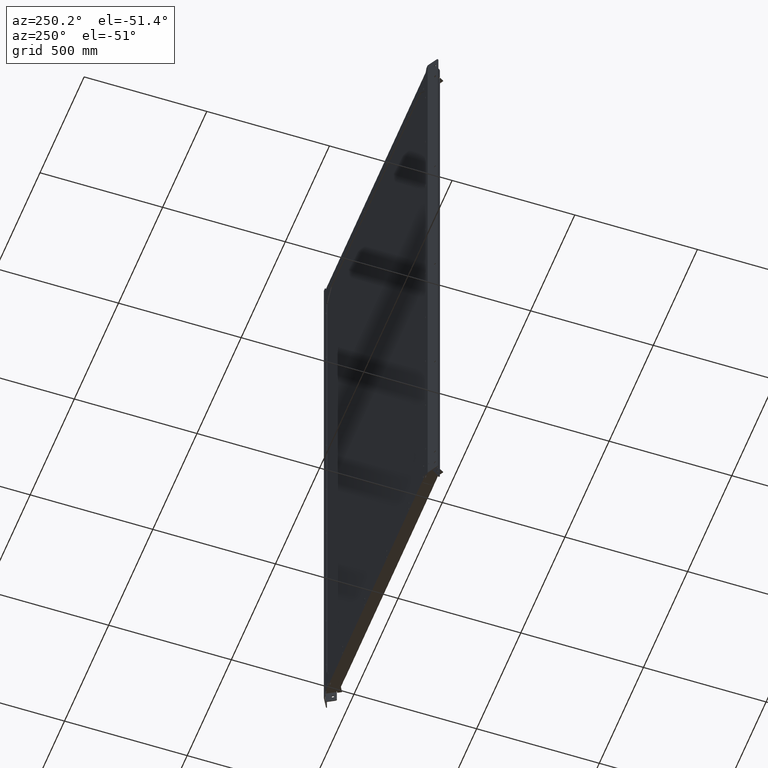
[diagram: clean part render]
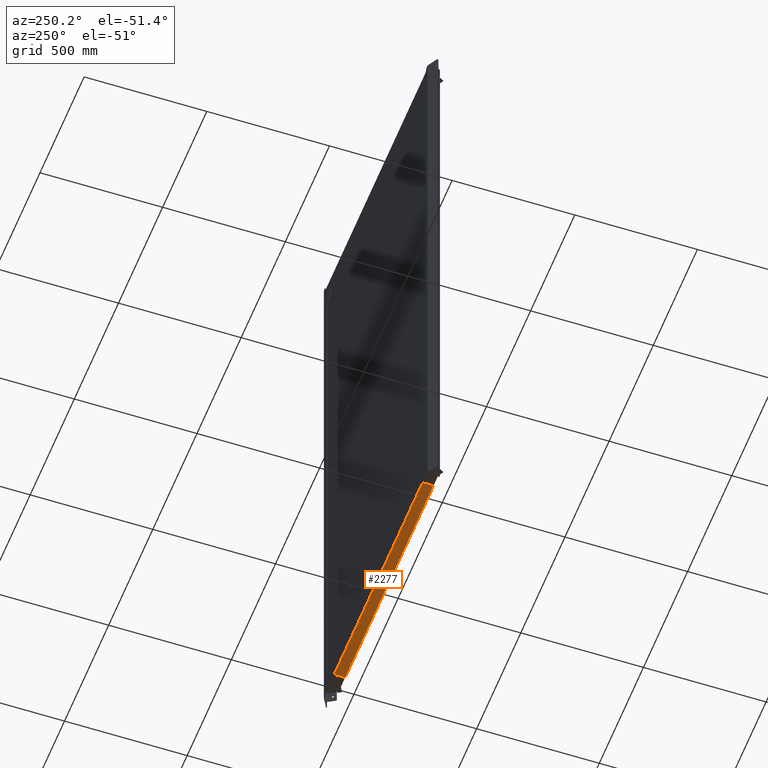
[diagram: same view with one face highlighted and labeled with its STEP entity id]
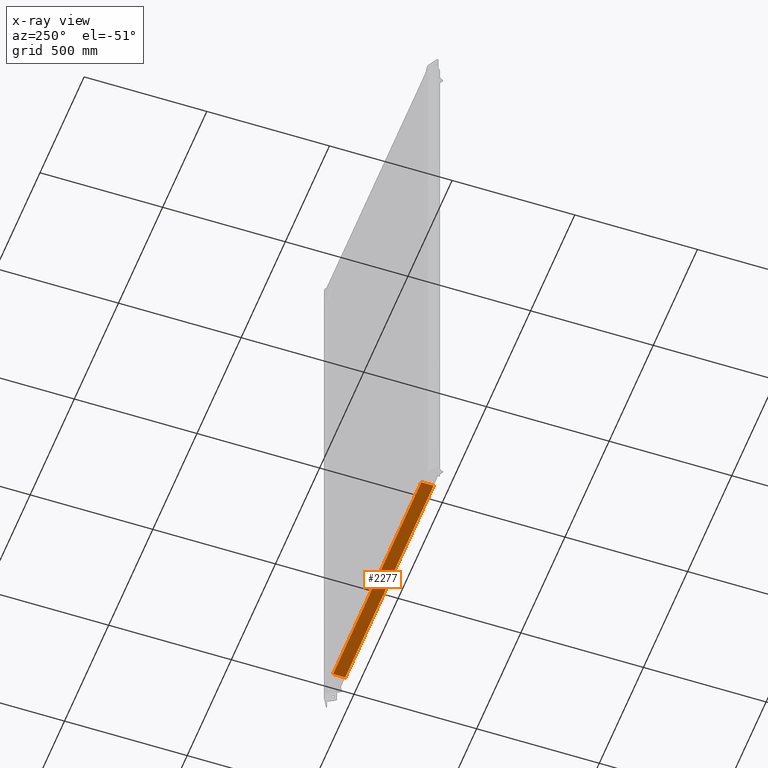
[diagram: x-ray of the same camera — body ghosted, the highlighted face saturated]
A machine part, auxiliary view. The second image highlights one B-rep face of the part: STEP entity #2277.
The next image is the same camera in x-ray: the body ghosted, the highlighted face saturated — about 0% of this face is hidden behind the body in this view.
In plain terms, the highlighted planar face has unit normal (0, 0, -1).
Its self-contained STEP definition (entity closure, byte-faithful):
#33 = DIRECTION ( 'NONE',  ( -1.000000000000000000, -0.000000000000000000, -0.000000000000000000 ) ) ;
#686 = EDGE_CURVE ( 'NONE', #7238, #8153, #7392, .T. ) ;
#752 = DIRECTION ( 'NONE',  ( 0.000000000000000000, -1.000000000000000000, -1.214306433183764966E-16 ) ) ;
#827 = CARTESIAN_POINT ( 'NONE',  ( 500.0000000000000000, -25.00000000000000000, -0.7500000000000029976 ) ) ;
#2143 = ORIENTED_EDGE ( 'NONE', *, *, #686, .F. ) ;
#2277 = ADVANCED_FACE ( 'NONE', ( #8207 ), #12580, .T. ) ;
#2472 = EDGE_LOOP ( 'NONE', ( #2143, #2672, #7819, #2907 ) ) ;
#2672 = ORIENTED_EDGE ( 'NONE', *, *, #9192, .F. ) ;
#2907 = ORIENTED_EDGE ( 'NONE', *, *, #7792, .T. ) ;
#3037 = DIRECTION ( 'NONE',  ( -1.000000000000000000, -0.000000000000000000, -0.000000000000000000 ) ) ;
#3054 = VECTOR ( 'NONE', #33, 1000.000000000000000 ) ;
#4207 = VECTOR ( 'NONE', #8595, 1000.000000000000000 ) ;
#4285 = CARTESIAN_POINT ( 'NONE',  ( -500.0000000000000000, -25.00000000000000000, -0.7500000000000029976 ) ) ;
#4335 = CARTESIAN_POINT ( 'NONE',  ( -500.0000000000000000, 25.00000000000000000, -0.7499999999999970024 ) ) ;
#5550 = VECTOR ( 'NONE', #752, 1000.000000000000000 ) ;
#7238 = VERTEX_POINT ( 'NONE', #4335 ) ;
#7392 = LINE ( 'NONE', #12828, #5550 ) ;
#7792 = EDGE_CURVE ( 'NONE', #9605, #8153, #10741, .T. ) ;
#7819 = ORIENTED_EDGE ( 'NONE', *, *, #9590, .T. ) ;
#8153 = VERTEX_POINT ( 'NONE', #4285 ) ;
#8207 = FACE_OUTER_BOUND ( 'NONE', #2472, .T. ) ;
#8411 = DIRECTION ( 'NONE',  ( 0.000000000000000000, 1.214306433183764966E-16, -1.000000000000000000 ) ) ;
#8525 = CARTESIAN_POINT ( 'NONE',  ( 500.0000000000000000, -25.00000000000000000, -0.7500000000000029976 ) ) ;
#8595 = DIRECTION ( 'NONE',  ( 0.000000000000000000, -1.000000000000000000, -1.214306433183764966E-16 ) ) ;
#9192 = EDGE_CURVE ( 'NONE', #11877, #7238, #10894, .T. ) ;
#9590 = EDGE_CURVE ( 'NONE', #11877, #9605, #13182, .T. ) ;
#9605 = VERTEX_POINT ( 'NONE', #8525 ) ;
#9674 = VECTOR ( 'NONE', #3037, 1000.000000000000000 ) ;
#10741 = LINE ( 'NONE', #827, #9674 ) ;
#10894 = LINE ( 'NONE', #11900, #3054 ) ;
#11372 = CARTESIAN_POINT ( 'NONE',  ( 500.0000000000000000, 25.00000000000000000, -0.7499999999999970024 ) ) ;
#11494 = DIRECTION ( 'NONE',  ( 0.000000000000000000, 1.000000000000000000, 1.214306433183764966E-16 ) ) ;
#11763 = AXIS2_PLACEMENT_3D ( 'NONE', #12721, #8411, #11494 ) ;
#11877 = VERTEX_POINT ( 'NONE', #11372 ) ;
#11900 = CARTESIAN_POINT ( 'NONE',  ( 500.0000000000000000, 25.00000000000000000, -0.7499999999999970024 ) ) ;
#12580 = PLANE ( 'NONE',  #11763 ) ;
#12721 = CARTESIAN_POINT ( 'NONE',  ( 500.0000000000000000, 25.00000000000000000, -0.7499999999999970024 ) ) ;
#12828 = CARTESIAN_POINT ( 'NONE',  ( -500.0000000000000000, 25.00000000000000000, -0.7499999999999970024 ) ) ;
#13028 = CARTESIAN_POINT ( 'NONE',  ( 500.0000000000000000, 25.00000000000000000, -0.7499999999999970024 ) ) ;
#13182 = LINE ( 'NONE', #13028, #4207 ) ;